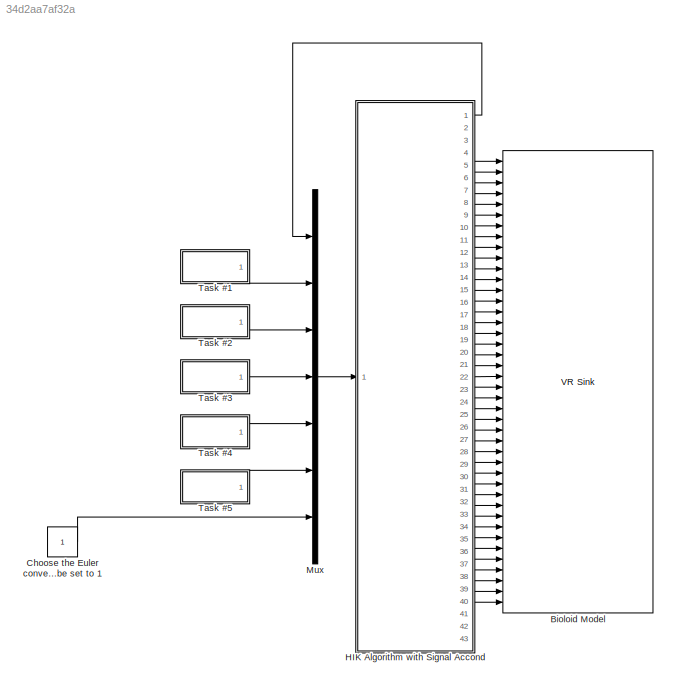
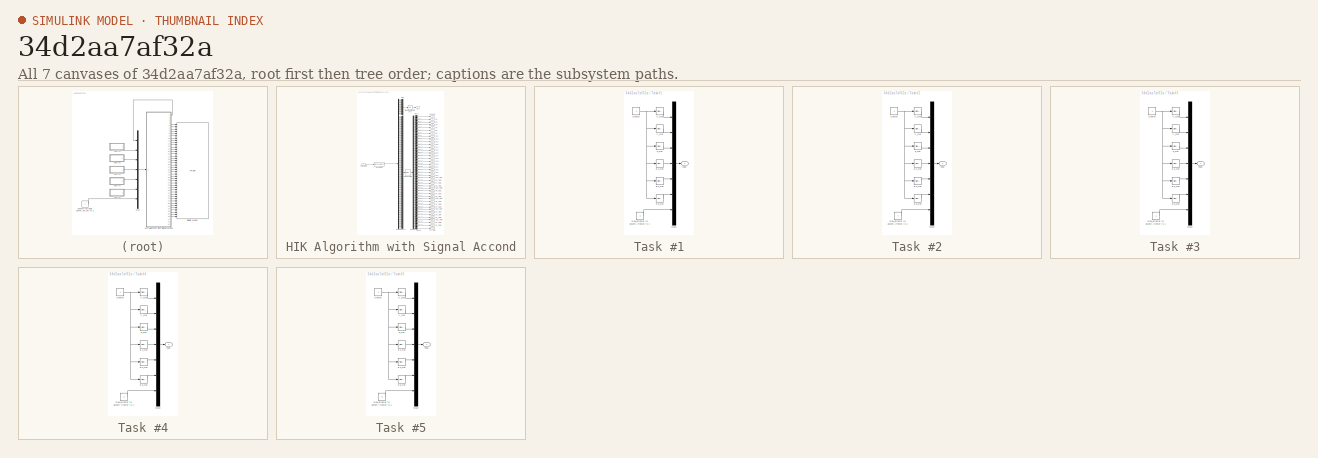
[diagram: thumbnail index - all 7 canvases of the model, root first then tree order]
MODEL slx_34d2aa7af32a
KIND model
BLOCK [Reference] Bioloid Model  REF=vrlib/VR Sink
  AllowVariableSize = off
  AutoView = on
  FieldsWritten = TrunkTraslation.translation.3.1.1.double#TrunkRotX.rotation.4.1.1.double#TrunkRotY.rotation.4.1.1.double#TrunkRotZ.rotation.4.1.1.double#Right_Arm.rotation.4.1.1.double#Right_Humeros1.rotation.4.1.1.double#Right_Hand1.rotation.4.1.1.double#Left_Arm.rotation.4.1.1.double#Left_Humeros1.rotation.4.1.1.double#Left_Hand1.rotation.4.1.1.double#Right_Groin.rotation.4.1.1.double#Right_Hip1.rotation.4.1.1....<+1020ch>
  InstantiateOnLoad = on
  Ports = [42]
  RemoteChange = off
  RemoteView = off
  SampleTime = 0.1
  SourceBlock = vrlib/VR Sink
  SourceType = Virtual Reality Sink
  VideoDimensions = []
  ViewEnable = on
  WorldDescription = Bioloid Model for HIK
  WorldFileName = Bioloid_model_5_obj.wrl
BLOCK [Constant] Choose the Euler convention 1.- XYZ 2.- XZY 3.- XYX 4.- XZX 5.- YXZ 6.- YZX 7.- YXY 8.- YZY 9.- ZXY 10.- ZYX 11.- ZXZ 12.- ZYZ if any other is chosen it will be set to 1
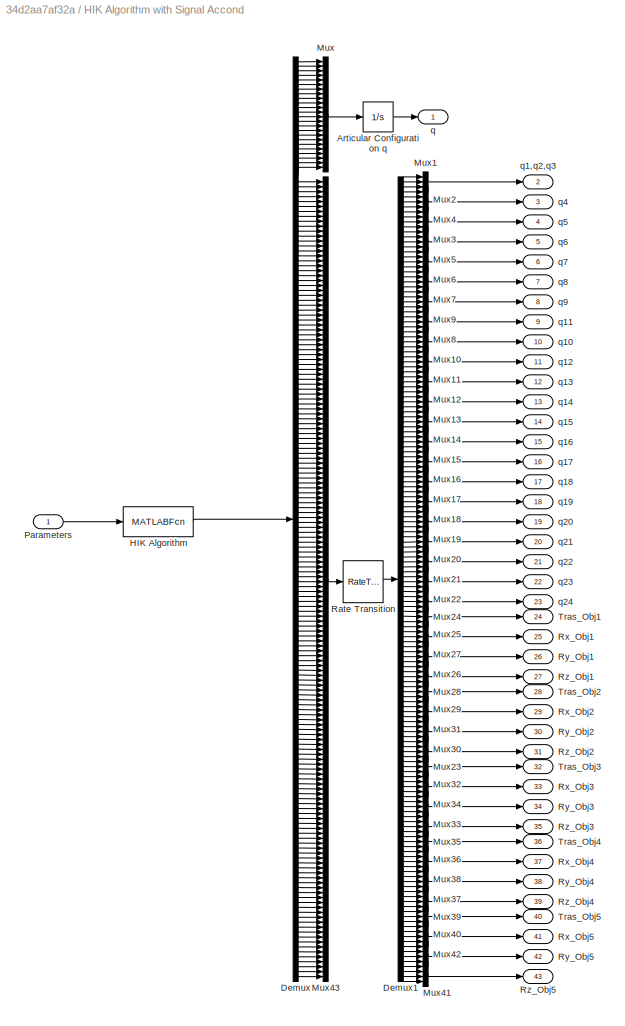
BLOCK [SubSystem] HIK Algorithm with Signal Accond
  FunctionWithSeparateData = off
  MaskHideContents = off
  MinAlgLoopOccurrences = off
  Opaque = off
  Ports = [1, 43]
  PropExecContextOutsideSubsystem = off
  RTWSystemCode = Auto
  RequestExecContextInheritance = off
BLOCK [Integrator] HIK Algorithm with Signal Accond/Articular Configuration q
  Ports = [1, 1]
BLOCK [Demux] HIK Algorithm with Signal Accond/Demux
  DisplayOption = bar
  Outputs = 186
  Ports = [1, 186]
BLOCK [Demux] HIK Algorithm with Signal Accond/Demux1
  DisplayOption = bar
  Outputs = 162
  Ports = [1, 162]
BLOCK [MATLABFcn] HIK Algorithm with Signal Accond/HIK Algorithm
  MATLABFcn = Bioloid_HIK (u(1:24),u(25:30),u(31),u(32:37),u(38),u(39:44),u(45),u(46:51),u(52),u(53:58),u(59),u(60))
  OutputDimensions = 186
  Ports = [1, 1]
  SampleTime = 0.01
BLOCK [Mux] HIK Algorithm with Signal Accond/Mux
  DisplayOption = bar
  Inputs = 24
  Ports = [24, 1]
BLOCK [Mux] HIK Algorithm with Signal Accond/Mux1
  DisplayOption = bar
  Inputs = 3
  Ports = [3, 1]
BLOCK [Mux] HIK Algorithm with Signal Accond/Mux10
  DisplayOption = bar
  Ports = [4, 1]
BLOCK [Mux] HIK Algorithm with Signal Accond/Mux11
  DisplayOption = bar
  Ports = [4, 1]
BLOCK [Mux] HIK Algorithm with Signal Accond/Mux12
  DisplayOption = bar
  Ports = [4, 1]
BLOCK [Mux] HIK Algorithm with Signal Accond/Mux13
  DisplayOption = bar
  Ports = [4, 1]
BLOCK [Mux] HIK Algorithm with Signal Accond/Mux14
  DisplayOption = bar
  Ports = [4, 1]
BLOCK [Mux] HIK Algorithm with Signal Accond/Mux15
  DisplayOption = bar
  Ports = [4, 1]
BLOCK [Mux] HIK Algorithm with Signal Accond/Mux16
  DisplayOption = bar
  Ports = [4, 1]
BLOCK [Mux] HIK Algorithm with Signal Accond/Mux17
  DisplayOption = bar
  Ports = [4, 1]
BLOCK [Mux] HIK Algorithm with Signal Accond/Mux18
  DisplayOption = bar
  Ports = [4, 1]
BLOCK [Mux] HIK Algorithm with Signal Accond/Mux19
  DisplayOption = bar
  Ports = [4, 1]
BLOCK [Mux] HIK Algorithm with Signal Accond/Mux2
  DisplayOption = bar
  Ports = [4, 1]
BLOCK [Mux] HIK Algorithm with Signal Accond/Mux20
  DisplayOption = bar
  Ports = [4, 1]
BLOCK [Mux] HIK Algorithm with Signal Accond/Mux21
  DisplayOption = bar
  Ports = [4, 1]
BLOCK [Mux] HIK Algorithm with Signal Accond/Mux22
  DisplayOption = bar
  Ports = [4, 1]
BLOCK [Mux] HIK Algorithm with Signal Accond/Mux23
  DisplayOption = bar
  Inputs = 3
  Ports = [3, 1]
BLOCK [Mux] HIK Algorithm with Signal Accond/Mux24
  DisplayOption = bar
  Inputs = 3
  Ports = [3, 1]
BLOCK [Mux] HIK Algorithm with Signal Accond/Mux25
  DisplayOption = bar
  Ports = [4, 1]
BLOCK [Mux] HIK Algorithm with Signal Accond/Mux26
  DisplayOption = bar
  Ports = [4, 1]
BLOCK [Mux] HIK Algorithm with Signal Accond/Mux27
  DisplayOption = bar
  Ports = [4, 1]
BLOCK [Mux] HIK Algorithm with Signal Accond/Mux28
  DisplayOption = bar
  Inputs = 3
  Ports = [3, 1]
BLOCK [Mux] HIK Algorithm with Signal Accond/Mux29
  DisplayOption = bar
  Ports = [4, 1]
BLOCK [Mux] HIK Algorithm with Signal Accond/Mux3
  DisplayOption = bar
  Ports = [4, 1]
BLOCK [Mux] HIK Algorithm with Signal Accond/Mux30
  DisplayOption = bar
  Ports = [4, 1]
BLOCK [Mux] HIK Algorithm with Signal Accond/Mux31
  DisplayOption = bar
  Ports = [4, 1]
BLOCK [Mux] HIK Algorithm with Signal Accond/Mux32
  DisplayOption = bar
  Ports = [4, 1]
BLOCK [Mux] HIK Algorithm with Signal Accond/Mux33
  DisplayOption = bar
  Ports = [4, 1]
BLOCK [Mux] HIK Algorithm with Signal Accond/Mux34
  DisplayOption = bar
  Ports = [4, 1]
BLOCK [Mux] HIK Algorithm with Signal Accond/Mux35
  DisplayOption = bar
  Inputs = 3
  Ports = [3, 1]
BLOCK [Mux] HIK Algorithm with Signal Accond/Mux36
  DisplayOption = bar
  Ports = [4, 1]
BLOCK [Mux] HIK Algorithm with Signal Accond/Mux37
  DisplayOption = bar
  Ports = [4, 1]
BLOCK [Mux] HIK Algorithm with Signal Accond/Mux38
  DisplayOption = bar
  Ports = [4, 1]
BLOCK [Mux] HIK Algorithm with Signal Accond/Mux39
  DisplayOption = bar
  Inputs = 3
  Ports = [3, 1]
BLOCK [Mux] HIK Algorithm with Signal Accond/Mux4
  DisplayOption = bar
  Ports = [4, 1]
BLOCK [Mux] HIK Algorithm with Signal Accond/Mux40
  DisplayOption = bar
  Ports = [4, 1]
BLOCK [Mux] HIK Algorithm with Signal Accond/Mux41
  DisplayOption = bar
  Ports = [4, 1]
BLOCK [Mux] HIK Algorithm with Signal Accond/Mux42
  DisplayOption = bar
  Ports = [4, 1]
BLOCK [Mux] HIK Algorithm with Signal Accond/Mux43
  DisplayOption = bar
  Inputs = 162
  Ports = [162, 1]
BLOCK [Mux] HIK Algorithm with Signal Accond/Mux5
  DisplayOption = bar
  Ports = [4, 1]
BLOCK [Mux] HIK Algorithm with Signal Accond/Mux6
  DisplayOption = bar
  Ports = [4, 1]
BLOCK [Mux] HIK Algorithm with Signal Accond/Mux7
  DisplayOption = bar
  Ports = [4, 1]
BLOCK [Mux] HIK Algorithm with Signal Accond/Mux8
  DisplayOption = bar
  Ports = [4, 1]
BLOCK [Mux] HIK Algorithm with Signal Accond/Mux9
  DisplayOption = bar
  Ports = [4, 1]
BLOCK [Inport] HIK Algorithm with Signal Accond/Parameters
  IconDisplay = Port number
BLOCK [RateTransition] HIK Algorithm with Signal Accond/Rate Transition
  OutPortSampleTime = 0.1
BLOCK [Outport] HIK Algorithm with Signal Accond/Rx_Obj1
  IconDisplay = Port number
  Port = 25
BLOCK [Outport] HIK Algorithm with Signal Accond/Rx_Obj2
  IconDisplay = Port number
  Port = 29
BLOCK [Outport] HIK Algorithm with Signal Accond/Rx_Obj3
  IconDisplay = Port number
  Port = 33
BLOCK [Outport] HIK Algorithm with Signal Accond/Rx_Obj4
  IconDisplay = Port number
  Port = 37
BLOCK [Outport] HIK Algorithm with Signal Accond/Rx_Obj5
  IconDisplay = Port number
  Port = 41
BLOCK [Outport] HIK Algorithm with Signal Accond/Ry_Obj1
  IconDisplay = Port number
  Port = 26
BLOCK [Outport] HIK Algorithm with Signal Accond/Ry_Obj2
  IconDisplay = Port number
  Port = 30
BLOCK [Outport] HIK Algorithm with Signal Accond/Ry_Obj3
  IconDisplay = Port number
  Port = 34
BLOCK [Outport] HIK Algorithm with Signal Accond/Ry_Obj4
  IconDisplay = Port number
  Port = 38
BLOCK [Outport] HIK Algorithm with Signal Accond/Ry_Obj5
  IconDisplay = Port number
  Port = 42
BLOCK [Outport] HIK Algorithm with Signal Accond/Rz_Obj1
  IconDisplay = Port number
  Port = 27
BLOCK [Outport] HIK Algorithm with Signal Accond/Rz_Obj2
  IconDisplay = Port number
  Port = 31
BLOCK [Outport] HIK Algorithm with Signal Accond/Rz_Obj3
  IconDisplay = Port number
  Port = 35
BLOCK [Outport] HIK Algorithm with Signal Accond/Rz_Obj4
  IconDisplay = Port number
  Port = 39
BLOCK [Outport] HIK Algorithm with Signal Accond/Rz_Obj5
  IconDisplay = Port number
  Port = 43
BLOCK [Outport] HIK Algorithm with Signal Accond/Tras_Obj1
  IconDisplay = Port number
  Port = 24
BLOCK [Outport] HIK Algorithm with Signal Accond/Tras_Obj2
  IconDisplay = Port number
  Port = 28
BLOCK [Outport] HIK Algorithm with Signal Accond/Tras_Obj3
  IconDisplay = Port number
  Port = 32
BLOCK [Outport] HIK Algorithm with Signal Accond/Tras_Obj4
  IconDisplay = Port number
  Port = 36
BLOCK [Outport] HIK Algorithm with Signal Accond/Tras_Obj5
  IconDisplay = Port number
  Port = 40
BLOCK [Outport] HIK Algorithm with Signal Accond/q
  IconDisplay = Port number
BLOCK [Outport] HIK Algorithm with Signal Accond/q1,q2,q3 
  IconDisplay = Port number
  Port = 2
BLOCK [Outport] HIK Algorithm with Signal Accond/q10
  IconDisplay = Port number
  Port = 10
BLOCK [Outport] HIK Algorithm with Signal Accond/q11
  IconDisplay = Port number
  Port = 9
BLOCK [Outport] HIK Algorithm with Signal Accond/q12
  IconDisplay = Port number
  Port = 11
BLOCK [Outport] HIK Algorithm with Signal Accond/q13
  IconDisplay = Port number
  Port = 12
BLOCK [Outport] HIK Algorithm with Signal Accond/q14
  IconDisplay = Port number
  Port = 13
BLOCK [Outport] HIK Algorithm with Signal Accond/q15
  IconDisplay = Port number
  Port = 14
BLOCK [Outport] HIK Algorithm with Signal Accond/q16
  IconDisplay = Port number
  Port = 15
BLOCK [Outport] HIK Algorithm with Signal Accond/q17
  IconDisplay = Port number
  Port = 16
BLOCK [Outport] HIK Algorithm with Signal Accond/q18
  IconDisplay = Port number
  Port = 17
BLOCK [Outport] HIK Algorithm with Signal Accond/q19
  IconDisplay = Port number
  Port = 18
BLOCK [Outport] HIK Algorithm with Signal Accond/q20
  IconDisplay = Port number
  Port = 19
BLOCK [Outport] HIK Algorithm with Signal Accond/q21
  IconDisplay = Port number
  Port = 20
BLOCK [Outport] HIK Algorithm with Signal Accond/q22
  IconDisplay = Port number
  Port = 21
BLOCK [Outport] HIK Algorithm with Signal Accond/q23
  IconDisplay = Port number
  Port = 22
BLOCK [Outport] HIK Algorithm with Signal Accond/q24
  IconDisplay = Port number
  Port = 23
BLOCK [Outport] HIK Algorithm with Signal Accond/q4
  IconDisplay = Port number
  Port = 3
BLOCK [Outport] HIK Algorithm with Signal Accond/q5
  IconDisplay = Port number
  Port = 4
BLOCK [Outport] HIK Algorithm with Signal Accond/q6
  IconDisplay = Port number
  Port = 5
BLOCK [Outport] HIK Algorithm with Signal Accond/q7
  IconDisplay = Port number
  Port = 6
BLOCK [Outport] HIK Algorithm with Signal Accond/q8
  IconDisplay = Port number
  Port = 7
BLOCK [Outport] HIK Algorithm with Signal Accond/q9
  IconDisplay = Port number
  Port = 8
BLOCK [Mux] Mux
  DisplayOption = bar
  Inputs = 7
  Ports = [7, 1]
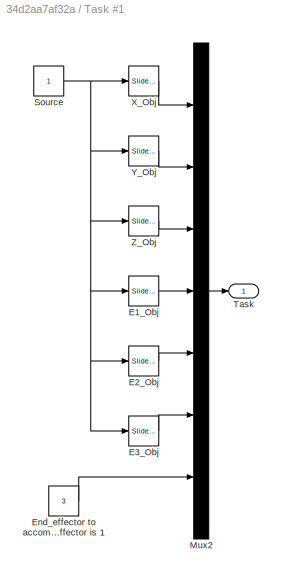
BLOCK [SubSystem] Task #1
  FunctionWithSeparateData = off
  MaskHideContents = off
  MinAlgLoopOccurrences = off
  Opaque = off
  Ports = [0, 1]
  PropExecContextOutsideSubsystem = off
  RTWSystemCode = Auto
  RequestExecContextInheritance = off
BLOCK [Reference] Task #1/E1_Obj  REF=simulink/Math
Operations/Slider
Gain
  Ports = [1, 1]
  SourceBlock = simulink/Math\nOperations/Slider\nGain
  SourceType = Slider Gain
  gain = 0
  high = 6.28
  low = -6.28
BLOCK [Reference] Task #1/E2_Obj  REF=simulink/Math
Operations/Slider
Gain
  Ports = [1, 1]
  SourceBlock = simulink/Math\nOperations/Slider\nGain
  SourceType = Slider Gain
  gain = 0
  high = 6.28
  low = -6.28
BLOCK [Reference] Task #1/E3_Obj  REF=simulink/Math
Operations/Slider
Gain
  Ports = [1, 1]
  SourceBlock = simulink/Math\nOperations/Slider\nGain
  SourceType = Slider Gain
  gain = 0
  high = 6.28
  low = -6.28
BLOCK [Constant] Task #1/End_effector to accomplish the task 1.- Right Hand 2- Left Hand 3.- Right Foot 4.- Left Foot 5.- Trunk if another number is choesen the End effector is 1
  Value = 3
BLOCK [Mux] Task #1/Mux2
  DisplayOption = bar
  Inputs = 7
  Ports = [7, 1]
BLOCK [Constant] Task #1/Source
BLOCK [Outport] Task #1/Task
  IconDisplay = Port number
BLOCK [Reference] Task #1/X_Obj  REF=simulink/Math
Operations/Slider
Gain
  Ports = [1, 1]
  SourceBlock = simulink/Math\nOperations/Slider\nGain
  SourceType = Slider Gain
  gain = 0
  high = 0.5
  low = -0.5
BLOCK [Reference] Task #1/Y_Obj  REF=simulink/Math
Operations/Slider
Gain
  Ports = [1, 1]
  SourceBlock = simulink/Math\nOperations/Slider\nGain
  SourceType = Slider Gain
  gain = -0.0385
  high = 0.5
  low = -0.5
BLOCK [Reference] Task #1/Z_Obj  REF=simulink/Math
Operations/Slider
Gain
  Ports = [1, 1]
  SourceBlock = simulink/Math\nOperations/Slider\nGain
  SourceType = Slider Gain
  gain = 0
  high = 0.5
  low = -0.5
BLOCK [SubSystem] Task #2
  FunctionWithSeparateData = off
  MaskHideContents = off
  MinAlgLoopOccurrences = off
  Opaque = off
  Ports = [0, 1]
  PropExecContextOutsideSubsystem = off
  RTWSystemCode = Auto
  RequestExecContextInheritance = off
BLOCK [Reference] Task #2/E1_Obj  REF=simulink/Math
Operations/Slider
Gain
  Ports = [1, 1]
  SourceBlock = simulink/Math\nOperations/Slider\nGain
  SourceType = Slider Gain
  gain = 0
  high = 6.28
  low = -6.28
BLOCK [Reference] Task #2/E2_Obj  REF=simulink/Math
Operations/Slider
Gain
  Ports = [1, 1]
  SourceBlock = simulink/Math\nOperations/Slider\nGain
  SourceType = Slider Gain
  gain = 0
  high = 6.28
  low = -6.28
BLOCK [Reference] Task #2/E3_Obj  REF=simulink/Math
Operations/Slider
Gain
  Ports = [1, 1]
  SourceBlock = simulink/Math\nOperations/Slider\nGain
  SourceType = Slider Gain
  gain = 0
  high = 6.28
  low = -6.28
BLOCK [Constant] Task #2/End_effector to accomplish the task 1.- Right Hand 2- Left Hand 3.- Right Foot 4.- Left Foot 5.- Trunk if another number is choesen the End effector is 1
  Value = 4
BLOCK [Mux] Task #2/Mux2
  DisplayOption = bar
  Inputs = 7
  Ports = [7, 1]
BLOCK [Constant] Task #2/Source
BLOCK [Outport] Task #2/Task
  IconDisplay = Port number
BLOCK [Reference] Task #2/X_Obj  REF=simulink/Math
Operations/Slider
Gain
  Ports = [1, 1]
  SourceBlock = simulink/Math\nOperations/Slider\nGain
  SourceType = Slider Gain
  gain = 0
  high = 0.5
  low = -0.5
BLOCK [Reference] Task #2/Y_Obj  REF=simulink/Math
Operations/Slider
Gain
  Ports = [1, 1]
  SourceBlock = simulink/Math\nOperations/Slider\nGain
  SourceType = Slider Gain
  gain = 0.0385
  high = 0.5
  low = -0.5
BLOCK [Reference] Task #2/Z_Obj  REF=simulink/Math
Operations/Slider
Gain
  Ports = [1, 1]
  SourceBlock = simulink/Math\nOperations/Slider\nGain
  SourceType = Slider Gain
  gain = 0
  high = 0.5
  low = -0.5
BLOCK [SubSystem] Task #3
  FunctionWithSeparateData = off
  MaskHideContents = off
  MinAlgLoopOccurrences = off
  Opaque = off
  Ports = [0, 1]
  PropExecContextOutsideSubsystem = off
  RTWSystemCode = Auto
  RequestExecContextInheritance = off
BLOCK [Reference] Task #3/E1_Obj  REF=simulink/Math
Operations/Slider
Gain
  Ports = [1, 1]
  SourceBlock = simulink/Math\nOperations/Slider\nGain
  SourceType = Slider Gain
  gain = 0
  high = 6.28
  low = -6.28
BLOCK [Reference] Task #3/E2_Obj  REF=simulink/Math
Operations/Slider
Gain
  Ports = [1, 1]
  SourceBlock = simulink/Math\nOperations/Slider\nGain
  SourceType = Slider Gain
  gain = -1.5708
  high = 6.28
  low = -6.28
BLOCK [Reference] Task #3/E3_Obj  REF=simulink/Math
Operations/Slider
Gain
  Ports = [1, 1]
  SourceBlock = simulink/Math\nOperations/Slider\nGain
  SourceType = Slider Gain
  gain = 0
  high = 6.28
  low = -6.28
BLOCK [Constant] Task #3/End_effector to accomplish the task 1.- Right Hand 2- Left Hand 3.- Right Foot 4.- Left Foot 5.- Trunk if another number is choesen the End effector is 1
BLOCK [Mux] Task #3/Mux2
  DisplayOption = bar
  Inputs = 7
  Ports = [7, 1]
BLOCK [Constant] Task #3/Source
BLOCK [Outport] Task #3/Task
  IconDisplay = Port number
BLOCK [Reference] Task #3/X_Obj  REF=simulink/Math
Operations/Slider
Gain
  Ports = [1, 1]
  SourceBlock = simulink/Math\nOperations/Slider\nGain
  SourceType = Slider Gain
  gain = 0.1
  high = 0.5
  low = -0.5
BLOCK [Reference] Task #3/Y_Obj  REF=simulink/Math
Operations/Slider
Gain
  Ports = [1, 1]
  SourceBlock = simulink/Math\nOperations/Slider\nGain
  SourceType = Slider Gain
  gain = -0.125
  high = 0.5
  low = -0.5
BLOCK [Reference] Task #3/Z_Obj  REF=simulink/Math
Operations/Slider
Gain
  Ports = [1, 1]
  SourceBlock = simulink/Math\nOperations/Slider\nGain
  SourceType = Slider Gain
  gain = 0.3025
  high = 0.5
  low = -0.5
BLOCK [SubSystem] Task #4
  FunctionWithSeparateData = off
  MaskHideContents = off
  MinAlgLoopOccurrences = off
  Opaque = off
  Ports = [0, 1]
  PropExecContextOutsideSubsystem = off
  RTWSystemCode = Auto
  RequestExecContextInheritance = off
BLOCK [Reference] Task #4/E1_Obj  REF=simulink/Math
Operations/Slider
Gain
  Ports = [1, 1]
  SourceBlock = simulink/Math\nOperations/Slider\nGain
  SourceType = Slider Gain
  gain = 0
  high = 6.28
  low = -6.28
BLOCK [Reference] Task #4/E2_Obj  REF=simulink/Math
Operations/Slider
Gain
  Ports = [1, 1]
  SourceBlock = simulink/Math\nOperations/Slider\nGain
  SourceType = Slider Gain
  gain = 1.5708
  high = 6.28
  low = -6.28
BLOCK [Reference] Task #4/E3_Obj  REF=simulink/Math
Operations/Slider
Gain
  Ports = [1, 1]
  SourceBlock = simulink/Math\nOperations/Slider\nGain
  SourceType = Slider Gain
  gain = 0
  high = 6.28
  low = -6.28
BLOCK [Constant] Task #4/End_effector to accomplish the task 1.- Right Hand 2- Left Hand 3.- Right Foot 4.- Left Foot 5.- Trunk if another number is choesen the End effector is 1
  Value = 2
BLOCK [Mux] Task #4/Mux2
  DisplayOption = bar
  Inputs = 7
  Ports = [7, 1]
BLOCK [Constant] Task #4/Source
BLOCK [Outport] Task #4/Task
  IconDisplay = Port number
BLOCK [Reference] Task #4/X_Obj  REF=simulink/Math
Operations/Slider
Gain
  Ports = [1, 1]
  SourceBlock = simulink/Math\nOperations/Slider\nGain
  SourceType = Slider Gain
  gain = 0
  high = 0.5
  low = -0.5
BLOCK [Reference] Task #4/Y_Obj  REF=simulink/Math
Operations/Slider
Gain
  Ports = [1, 1]
  SourceBlock = simulink/Math\nOperations/Slider\nGain
  SourceType = Slider Gain
  gain = 0.185
  high = 0.5
  low = -0.5
BLOCK [Reference] Task #4/Z_Obj  REF=simulink/Math
Operations/Slider
Gain
  Ports = [1, 1]
  SourceBlock = simulink/Math\nOperations/Slider\nGain
  SourceType = Slider Gain
  gain = 0.32569
  high = 0.5
  low = -0.5
BLOCK [SubSystem] Task #5
  FunctionWithSeparateData = off
  MaskHideContents = off
  MinAlgLoopOccurrences = off
  Opaque = off
  Ports = [0, 1]
  PropExecContextOutsideSubsystem = off
  RTWSystemCode = Auto
  RequestExecContextInheritance = off
BLOCK [Reference] Task #5/E1_Obj  REF=simulink/Math
Operations/Slider
Gain
  Ports = [1, 1]
  SourceBlock = simulink/Math\nOperations/Slider\nGain
  SourceType = Slider Gain
  gain = 0
  high = 6.28
  low = -6.28
BLOCK [Reference] Task #5/E2_Obj  REF=simulink/Math
Operations/Slider
Gain
  Ports = [1, 1]
  SourceBlock = simulink/Math\nOperations/Slider\nGain
  SourceType = Slider Gain
  gain = 0
  high = 6.28
  low = -6.28
BLOCK [Reference] Task #5/E3_Obj  REF=simulink/Math
Operations/Slider
Gain
  Ports = [1, 1]
  SourceBlock = simulink/Math\nOperations/Slider\nGain
  SourceType = Slider Gain
  gain = 1.256
  high = 6.28
  low = -6.28
BLOCK [Constant] Task #5/End_effector to accomplish the task 1.- Right Hand 2- Left Hand 3.- Right Foot 4.- Left Foot 5.- Trunk if another number is choesen the End effector is 1
  Value = 5
BLOCK [Mux] Task #5/Mux2
  DisplayOption = bar
  Inputs = 7
  Ports = [7, 1]
BLOCK [Constant] Task #5/Source
BLOCK [Outport] Task #5/Task
  IconDisplay = Port number
BLOCK [Reference] Task #5/X_Obj  REF=simulink/Math
Operations/Slider
Gain
  Ports = [1, 1]
  SourceBlock = simulink/Math\nOperations/Slider\nGain
  SourceType = Slider Gain
  gain = 0
  high = 0.5
  low = -0.5
BLOCK [Reference] Task #5/Y_Obj  REF=simulink/Math
Operations/Slider
Gain
  Ports = [1, 1]
  SourceBlock = simulink/Math\nOperations/Slider\nGain
  SourceType = Slider Gain
  gain = 0
  high = 0.5
  low = -0.5
BLOCK [Reference] Task #5/Z_Obj  REF=simulink/Math
Operations/Slider
Gain
  Ports = [1, 1]
  SourceBlock = simulink/Math\nOperations/Slider\nGain
  SourceType = Slider Gain
  gain = 0.2825
  high = 0.5
  low = -0.5
LINE Choose the Euler convention 1.- XYZ 2.- XZY 3.- XYX 4.- XZX 5.- YXZ 6.- YZX 7.- YXY 8.- YZY 9.- ZXY 10.- ZYX 11.- ZXZ 12.- ZYZ if any other is chosen it will be set to 1:1 -> Mux:7
LINE HIK Algorithm with Signal Accond/Articular Configuration q:1 -> HIK Algorithm with Signal Accond/q:1
LINE HIK Algorithm with Signal Accond/Demux1:1 -> HIK Algorithm with Signal Accond/Mux1:1
LINE HIK Algorithm with Signal Accond/Demux1:10 -> HIK Algorithm with Signal Accond/Mux4:3
LINE HIK Algorithm with Signal Accond/Demux1:100 -> HIK Algorithm with Signal Accond/Mux26:2
LINE HIK Algorithm with Signal Accond/Demux1:101 -> HIK Algorithm with Signal Accond/Mux26:3
LINE HIK Algorithm with Signal Accond/Demux1:102 -> HIK Algorithm with Signal Accond/Mux26:4
LINE HIK Algorithm with Signal Accond/Demux1:103 -> HIK Algorithm with Signal Accond/Mux28:1
LINE HIK Algorithm with Signal Accond/Demux1:104 -> HIK Algorithm with Signal Accond/Mux28:2
LINE HIK Algorithm with Signal Accond/Demux1:105 -> HIK Algorithm with Signal Accond/Mux28:3
LINE HIK Algorithm with Signal Accond/Demux1:106 -> HIK Algorithm with Signal Accond/Mux29:1
LINE HIK Algorithm with Signal Accond/Demux1:107 -> HIK Algorithm with Signal Accond/Mux29:2
LINE HIK Algorithm with Signal Accond/Demux1:108 -> HIK Algorithm with Signal Accond/Mux29:3
LINE HIK Algorithm with Signal Accond/Demux1:109 -> HIK Algorithm with Signal Accond/Mux29:4
LINE HIK Algorithm with Signal Accond/Demux1:11 -> HIK Algorithm with Signal Accond/Mux4:4
LINE HIK Algorithm with Signal Accond/Demux1:110 -> HIK Algorithm with Signal Accond/Mux31:1
LINE HIK Algorithm with Signal Accond/Demux1:111 -> HIK Algorithm with Signal Accond/Mux31:2
LINE HIK Algorithm with Signal Accond/Demux1:112 -> HIK Algorithm with Signal Accond/Mux31:3
LINE HIK Algorithm with Signal Accond/Demux1:113 -> HIK Algorithm with Signal Accond/Mux31:4
LINE HIK Algorithm with Signal Accond/Demux1:114 -> HIK Algorithm with Signal Accond/Mux30:1
LINE HIK Algorithm with Signal Accond/Demux1:115 -> HIK Algorithm with Signal Accond/Mux30:2
LINE HIK Algorithm with Signal Accond/Demux1:116 -> HIK Algorithm with Signal Accond/Mux30:3
LINE HIK Algorithm with Signal Accond/Demux1:117 -> HIK Algorithm with Signal Accond/Mux30:4
LINE HIK Algorithm with Signal Accond/Demux1:118 -> HIK Algorithm with Signal Accond/Mux23:1
LINE HIK Algorithm with Signal Accond/Demux1:119 -> HIK Algorithm with Signal Accond/Mux23:2
LINE HIK Algorithm with Signal Accond/Demux1:12 -> HIK Algorithm with Signal Accond/Mux3:1
LINE HIK Algorithm with Signal Accond/Demux1:120 -> HIK Algorithm with Signal Accond/Mux23:3
LINE HIK Algorithm with Signal Accond/Demux1:121 -> HIK Algorithm with Signal Accond/Mux32:1
LINE HIK Algorithm with Signal Accond/Demux1:122 -> HIK Algorithm with Signal Accond/Mux32:2
LINE HIK Algorithm with Signal Accond/Demux1:123 -> HIK Algorithm with Signal Accond/Mux32:3
LINE HIK Algorithm with Signal Accond/Demux1:124 -> HIK Algorithm with Signal Accond/Mux32:4
LINE HIK Algorithm with Signal Accond/Demux1:125 -> HIK Algorithm with Signal Accond/Mux34:1
LINE HIK Algorithm with Signal Accond/Demux1:126 -> HIK Algorithm with Signal Accond/Mux34:2
LINE HIK Algorithm with Signal Accond/Demux1:127 -> HIK Algorithm with Signal Accond/Mux34:3
LINE HIK Algorithm with Signal Accond/Demux1:128 -> HIK Algorithm with Signal Accond/Mux34:4
LINE HIK Algorithm with Signal Accond/Demux1:129 -> HIK Algorithm with Signal Accond/Mux33:1
LINE HIK Algorithm with Signal Accond/Demux1:13 -> HIK Algorithm with Signal Accond/Mux3:2
LINE HIK Algorithm with Signal Accond/Demux1:130 -> HIK Algorithm with Signal Accond/Mux33:2
LINE HIK Algorithm with Signal Accond/Demux1:131 -> HIK Algorithm with Signal Accond/Mux33:3
LINE HIK Algorithm with Signal Accond/Demux1:132 -> HIK Algorithm with Signal Accond/Mux33:4
LINE HIK Algorithm with Signal Accond/Demux1:133 -> HIK Algorithm with Signal Accond/Mux35:1
LINE HIK Algorithm with Signal Accond/Demux1:134 -> HIK Algorithm with Signal Accond/Mux35:2
LINE HIK Algorithm with Signal Accond/Demux1:135 -> HIK Algorithm with Signal Accond/Mux35:3
LINE HIK Algorithm with Signal Accond/Demux1:136 -> HIK Algorithm with Signal Accond/Mux36:1
LINE HIK Algorithm with Signal Accond/Demux1:137 -> HIK Algorithm with Signal Accond/Mux36:2
LINE HIK Algorithm with Signal Accond/Demux1:138 -> HIK Algorithm with Signal Accond/Mux36:3
LINE HIK Algorithm with Signal Accond/Demux1:139 -> HIK Algorithm with Signal Accond/Mux36:4
LINE HIK Algorithm with Signal Accond/Demux1:14 -> HIK Algorithm with Signal Accond/Mux3:3
LINE HIK Algorithm with Signal Accond/Demux1:140 -> HIK Algorithm with Signal Accond/Mux38:1
LINE HIK Algorithm with Signal Accond/Demux1:141 -> HIK Algorithm with Signal Accond/Mux38:2
LINE HIK Algorithm with Signal Accond/Demux1:142 -> HIK Algorithm with Signal Accond/Mux38:3
LINE HIK Algorithm with Signal Accond/Demux1:143 -> HIK Algorithm with Signal Accond/Mux38:4
LINE HIK Algorithm with Signal Accond/Demux1:144 -> HIK Algorithm with Signal Accond/Mux37:1
LINE HIK Algorithm with Signal Accond/Demux1:145 -> HIK Algorithm with Signal Accond/Mux37:2
LINE HIK Algorithm with Signal Accond/Demux1:146 -> HIK Algorithm with Signal Accond/Mux37:3
LINE HIK Algorithm with Signal Accond/Demux1:147 -> HIK Algorithm with Signal Accond/Mux37:4
LINE HIK Algorithm with Signal Accond/Demux1:148 -> HIK Algorithm with Signal Accond/Mux39:1
LINE HIK Algorithm with Signal Accond/Demux1:149 -> HIK Algorithm with Signal Accond/Mux39:2
LINE HIK Algorithm with Signal Accond/Demux1:15 -> HIK Algorithm with Signal Accond/Mux3:4
LINE HIK Algorithm with Signal Accond/Demux1:150 -> HIK Algorithm with Signal Accond/Mux39:3
LINE HIK Algorithm with Signal Accond/Demux1:151 -> HIK Algorithm with Signal Accond/Mux40:1
LINE HIK Algorithm with Signal Accond/Demux1:152 -> HIK Algorithm with Signal Accond/Mux40:2
LINE HIK Algorithm with Signal Accond/Demux1:153 -> HIK Algorithm with Signal Accond/Mux40:3
LINE HIK Algorithm with Signal Accond/Demux1:154 -> HIK Algorithm with Signal Accond/Mux40:4
LINE HIK Algorithm with Signal Accond/Demux1:155 -> HIK Algorithm with Signal Accond/Mux42:1
LINE HIK Algorithm with Signal Accond/Demux1:156 -> HIK Algorithm with Signal Accond/Mux42:2
LINE HIK Algorithm with Signal Accond/Demux1:157 -> HIK Algorithm with Signal Accond/Mux42:3
LINE HIK Algorithm with Signal Accond/Demux1:158 -> HIK Algorithm with Signal Accond/Mux42:4
LINE HIK Algorithm with Signal Accond/Demux1:159 -> HIK Algorithm with Signal Accond/Mux41:1
LINE HIK Algorithm with Signal Accond/Demux1:16 -> HIK Algorithm with Signal Accond/Mux5:1
LINE HIK Algorithm with Signal Accond/Demux1:160 -> HIK Algorithm with Signal Accond/Mux41:2
LINE HIK Algorithm with Signal Accond/Demux1:161 -> HIK Algorithm with Signal Accond/Mux41:3
LINE HIK Algorithm with Signal Accond/Demux1:162 -> HIK Algorithm with Signal Accond/Mux41:4
LINE HIK Algorithm with Signal Accond/Demux1:17 -> HIK Algorithm with Signal Accond/Mux5:2
LINE HIK Algorithm with Signal Accond/Demux1:18 -> HIK Algorithm with Signal Accond/Mux5:3
LINE HIK Algorithm with Signal Accond/Demux1:19 -> HIK Algorithm with Signal Accond/Mux5:4
LINE HIK Algorithm with Signal Accond/Demux1:2 -> HIK Algorithm with Signal Accond/Mux1:2
LINE HIK Algorithm with Signal Accond/Demux1:20 -> HIK Algorithm with Signal Accond/Mux6:1
LINE HIK Algorithm with Signal Accond/Demux1:21 -> HIK Algorithm with Signal Accond/Mux6:2
LINE HIK Algorithm with Signal Accond/Demux1:22 -> HIK Algorithm with Signal Accond/Mux6:3
LINE HIK Algorithm with Signal Accond/Demux1:23 -> HIK Algorithm with Signal Accond/Mux6:4
LINE HIK Algorithm with Signal Accond/Demux1:24 -> HIK Algorithm with Signal Accond/Mux7:1
LINE HIK Algorithm with Signal Accond/Demux1:25 -> HIK Algorithm with Signal Accond/Mux7:2
LINE HIK Algorithm with Signal Accond/Demux1:26 -> HIK Algorithm with Signal Accond/Mux7:3
LINE HIK Algorithm with Signal Accond/Demux1:27 -> HIK Algorithm with Signal Accond/Mux7:4
LINE HIK Algorithm with Signal Accond/Demux1:28 -> HIK Algorithm with Signal Accond/Mux9:1
LINE HIK Algorithm with Signal Accond/Demux1:29 -> HIK Algorithm with Signal Accond/Mux9:2
LINE HIK Algorithm with Signal Accond/Demux1:3 -> HIK Algorithm with Signal Accond/Mux1:3
LINE HIK Algorithm with Signal Accond/Demux1:30 -> HIK Algorithm with Signal Accond/Mux9:3
LINE HIK Algorithm with Signal Accond/Demux1:31 -> HIK Algorithm with Signal Accond/Mux9:4
LINE HIK Algorithm with Signal Accond/Demux1:32 -> HIK Algorithm with Signal Accond/Mux8:1
LINE HIK Algorithm with Signal Accond/Demux1:33 -> HIK Algorithm with Signal Accond/Mux8:2
LINE HIK Algorithm with Signal Accond/Demux1:34 -> HIK Algorithm with Signal Accond/Mux8:3
LINE HIK Algorithm with Signal Accond/Demux1:35 -> HIK Algorithm with Signal Accond/Mux8:4
LINE HIK Algorithm with Signal Accond/Demux1:36 -> HIK Algorithm with Signal Accond/Mux10:1
LINE HIK Algorithm with Signal Accond/Demux1:37 -> HIK Algorithm with Signal Accond/Mux10:2
LINE HIK Algorithm with Signal Accond/Demux1:38 -> HIK Algorithm with Signal Accond/Mux10:3
LINE HIK Algorithm with Signal Accond/Demux1:39 -> HIK Algorithm with Signal Accond/Mux10:4
LINE HIK Algorithm with Signal Accond/Demux1:4 -> HIK Algorithm with Signal Accond/Mux2:1
LINE HIK Algorithm with Signal Accond/Demux1:40 -> HIK Algorithm with Signal Accond/Mux11:1
LINE HIK Algorithm with Signal Accond/Demux1:41 -> HIK Algorithm with Signal Accond/Mux11:2
LINE HIK Algorithm with Signal Accond/Demux1:42 -> HIK Algorithm with Signal Accond/Mux11:3
LINE HIK Algorithm with Signal Accond/Demux1:43 -> HIK Algorithm with Signal Accond/Mux11:4
LINE HIK Algorithm with Signal Accond/Demux1:44 -> HIK Algorithm with Signal Accond/Mux12:1
LINE HIK Algorithm with Signal Accond/Demux1:45 -> HIK Algorithm with Signal Accond/Mux12:2
LINE HIK Algorithm with Signal Accond/Demux1:46 -> HIK Algorithm with Signal Accond/Mux12:3
LINE HIK Algorithm with Signal Accond/Demux1:47 -> HIK Algorithm with Signal Accond/Mux12:4
LINE HIK Algorithm with Signal Accond/Demux1:48 -> HIK Algorithm with Signal Accond/Mux13:1
LINE HIK Algorithm with Signal Accond/Demux1:49 -> HIK Algorithm with Signal Accond/Mux13:2
LINE HIK Algorithm with Signal Accond/Demux1:5 -> HIK Algorithm with Signal Accond/Mux2:2
LINE HIK Algorithm with Signal Accond/Demux1:50 -> HIK Algorithm with Signal Accond/Mux13:3
LINE HIK Algorithm with Signal Accond/Demux1:51 -> HIK Algorithm with Signal Accond/Mux13:4
LINE HIK Algorithm with Signal Accond/Demux1:52 -> HIK Algorithm with Signal Accond/Mux14:1
LINE HIK Algorithm with Signal Accond/Demux1:53 -> HIK Algorithm with Signal Accond/Mux14:2
LINE HIK Algorithm with Signal Accond/Demux1:54 -> HIK Algorithm with Signal Accond/Mux14:3
LINE HIK Algorithm with Signal Accond/Demux1:55 -> HIK Algorithm with Signal Accond/Mux14:4
LINE HIK Algorithm with Signal Accond/Demux1:56 -> HIK Algorithm with Signal Accond/Mux15:1
LINE HIK Algorithm with Signal Accond/Demux1:57 -> HIK Algorithm with Signal Accond/Mux15:2
LINE HIK Algorithm with Signal Accond/Demux1:58 -> HIK Algorithm with Signal Accond/Mux15:3
LINE HIK Algorithm with Signal Accond/Demux1:59 -> HIK Algorithm with Signal Accond/Mux15:4
LINE HIK Algorithm with Signal Accond/Demux1:6 -> HIK Algorithm with Signal Accond/Mux2:3
LINE HIK Algorithm with Signal Accond/Demux1:60 -> HIK Algorithm with Signal Accond/Mux16:1
LINE HIK Algorithm with Signal Accond/Demux1:61 -> HIK Algorithm with Signal Accond/Mux16:2
LINE HIK Algorithm with Signal Accond/Demux1:62 -> HIK Algorithm with Signal Accond/Mux16:3
LINE HIK Algorithm with Signal Accond/Demux1:63 -> HIK Algorithm with Signal Accond/Mux16:4
LINE HIK Algorithm with Signal Accond/Demux1:64 -> HIK Algorithm with Signal Accond/Mux17:1
LINE HIK Algorithm with Signal Accond/Demux1:65 -> HIK Algorithm with Signal Accond/Mux17:2
LINE HIK Algorithm with Signal Accond/Demux1:66 -> HIK Algorithm with Signal Accond/Mux17:3
LINE HIK Algorithm with Signal Accond/Demux1:67 -> HIK Algorithm with Signal Accond/Mux17:4
LINE HIK Algorithm with Signal Accond/Demux1:68 -> HIK Algorithm with Signal Accond/Mux18:1
LINE HIK Algorithm with Signal Accond/Demux1:69 -> HIK Algorithm with Signal Accond/Mux18:2
LINE HIK Algorithm with Signal Accond/Demux1:7 -> HIK Algorithm with Signal Accond/Mux2:4
LINE HIK Algorithm with Signal Accond/Demux1:70 -> HIK Algorithm with Signal Accond/Mux18:3
LINE HIK Algorithm with Signal Accond/Demux1:71 -> HIK Algorithm with Signal Accond/Mux18:4
LINE HIK Algorithm with Signal Accond/Demux1:72 -> HIK Algorithm with Signal Accond/Mux19:1
LINE HIK Algorithm with Signal Accond/Demux1:73 -> HIK Algorithm with Signal Accond/Mux19:2
LINE HIK Algorithm with Signal Accond/Demux1:74 -> HIK Algorithm with Signal Accond/Mux19:3
LINE HIK Algorithm with Signal Accond/Demux1:75 -> HIK Algorithm with Signal Accond/Mux19:4
LINE HIK Algorithm with Signal Accond/Demux1:76 -> HIK Algorithm with Signal Accond/Mux20:1
LINE HIK Algorithm with Signal Accond/Demux1:77 -> HIK Algorithm with Signal Accond/Mux20:2
LINE HIK Algorithm with Signal Accond/Demux1:78 -> HIK Algorithm with Signal Accond/Mux20:3
LINE HIK Algorithm with Signal Accond/Demux1:79 -> HIK Algorithm with Signal Accond/Mux20:4
LINE HIK Algorithm with Signal Accond/Demux1:8 -> HIK Algorithm with Signal Accond/Mux4:1
LINE HIK Algorithm with Signal Accond/Demux1:80 -> HIK Algorithm with Signal Accond/Mux21:1
LINE HIK Algorithm with Signal Accond/Demux1:81 -> HIK Algorithm with Signal Accond/Mux21:2
LINE HIK Algorithm with Signal Accond/Demux1:82 -> HIK Algorithm with Signal Accond/Mux21:3
LINE HIK Algorithm with Signal Accond/Demux1:83 -> HIK Algorithm with Signal Accond/Mux21:4
LINE HIK Algorithm with Signal Accond/Demux1:84 -> HIK Algorithm with Signal Accond/Mux22:1
LINE HIK Algorithm with Signal Accond/Demux1:85 -> HIK Algorithm with Signal Accond/Mux22:2
LINE HIK Algorithm with Signal Accond/Demux1:86 -> HIK Algorithm with Signal Accond/Mux22:3
LINE HIK Algorithm with Signal Accond/Demux1:87 -> HIK Algorithm with Signal Accond/Mux22:4
LINE HIK Algorithm with Signal Accond/Demux1:88 -> HIK Algorithm with Signal Accond/Mux24:1
LINE HIK Algorithm with Signal Accond/Demux1:89 -> HIK Algorithm with Signal Accond/Mux24:2
LINE HIK Algorithm with Signal Accond/Demux1:9 -> HIK Algorithm with Signal Accond/Mux4:2
LINE HIK Algorithm with Signal Accond/Demux1:90 -> HIK Algorithm with Signal Accond/Mux24:3
LINE HIK Algorithm with Signal Accond/Demux1:91 -> HIK Algorithm with Signal Accond/Mux25:1
LINE HIK Algorithm with Signal Accond/Demux1:92 -> HIK Algorithm with Signal Accond/Mux25:2
LINE HIK Algorithm with Signal Accond/Demux1:93 -> HIK Algorithm with Signal Accond/Mux25:3
LINE HIK Algorithm with Signal Accond/Demux1:94 -> HIK Algorithm with Signal Accond/Mux25:4
LINE HIK Algorithm with Signal Accond/Demux1:95 -> HIK Algorithm with Signal Accond/Mux27:1
LINE HIK Algorithm with Signal Accond/Demux1:96 -> HIK Algorithm with Signal Accond/Mux27:2
LINE HIK Algorithm with Signal Accond/Demux1:97 -> HIK Algorithm with Signal Accond/Mux27:3
LINE HIK Algorithm with Signal Accond/Demux1:98 -> HIK Algorithm with Signal Accond/Mux27:4
LINE HIK Algorithm with Signal Accond/Demux1:99 -> HIK Algorithm with Signal Accond/Mux26:1
LINE HIK Algorithm with Signal Accond/Demux:1 -> HIK Algorithm with Signal Accond/Mux:1
LINE HIK Algorithm with Signal Accond/Demux:10 -> HIK Algorithm with Signal Accond/Mux:10
LINE HIK Algorithm with Signal Accond/Demux:100 -> HIK Algorithm with Signal Accond/Mux43:76
LINE HIK Algorithm with Signal Accond/Demux:101 -> HIK Algorithm with Signal Accond/Mux43:77
LINE HIK Algorithm with Signal Accond/Demux:102 -> HIK Algorithm with Signal Accond/Mux43:78
LINE HIK Algorithm with Signal Accond/Demux:103 -> HIK Algorithm with Signal Accond/Mux43:79
LINE HIK Algorithm with Signal Accond/Demux:104 -> HIK Algorithm with Signal Accond/Mux43:80
LINE HIK Algorithm with Signal Accond/Demux:105 -> HIK Algorithm with Signal Accond/Mux43:81
LINE HIK Algorithm with Signal Accond/Demux:106 -> HIK Algorithm with Signal Accond/Mux43:82
LINE HIK Algorithm with Signal Accond/Demux:107 -> HIK Algorithm with Signal Accond/Mux43:83
LINE HIK Algorithm with Signal Accond/Demux:108 -> HIK Algorithm with Signal Accond/Mux43:84
LINE HIK Algorithm with Signal Accond/Demux:109 -> HIK Algorithm with Signal Accond/Mux43:85
LINE HIK Algorithm with Signal Accond/Demux:11 -> HIK Algorithm with Signal Accond/Mux:11
LINE HIK Algorithm with Signal Accond/Demux:110 -> HIK Algorithm with Signal Accond/Mux43:86
LINE HIK Algorithm with Signal Accond/Demux:111 -> HIK Algorithm with Signal Accond/Mux43:87
LINE HIK Algorithm with Signal Accond/Demux:112 -> HIK Algorithm with Signal Accond/Mux43:88
LINE HIK Algorithm with Signal Accond/Demux:113 -> HIK Algorithm with Signal Accond/Mux43:89
LINE HIK Algorithm with Signal Accond/Demux:114 -> HIK Algorithm with Signal Accond/Mux43:90
LINE HIK Algorithm with Signal Accond/Demux:115 -> HIK Algorithm with Signal Accond/Mux43:91
LINE HIK Algorithm with Signal Accond/Demux:116 -> HIK Algorithm with Signal Accond/Mux43:92
LINE HIK Algorithm with Signal Accond/Demux:117 -> HIK Algorithm with Signal Accond/Mux43:93
LINE HIK Algorithm with Signal Accond/Demux:118 -> HIK Algorithm with Signal Accond/Mux43:94
LINE HIK Algorithm with Signal Accond/Demux:119 -> HIK Algorithm with Signal Accond/Mux43:95
LINE HIK Algorithm with Signal Accond/Demux:12 -> HIK Algorithm with Signal Accond/Mux:12
LINE HIK Algorithm with Signal Accond/Demux:120 -> HIK Algorithm with Signal Accond/Mux43:96
LINE HIK Algorithm with Signal Accond/Demux:121 -> HIK Algorithm with Signal Accond/Mux43:97
LINE HIK Algorithm with Signal Accond/Demux:122 -> HIK Algorithm with Signal Accond/Mux43:98
LINE HIK Algorithm with Signal Accond/Demux:123 -> HIK Algorithm with Signal Accond/Mux43:99
LINE HIK Algorithm with Signal Accond/Demux:124 -> HIK Algorithm with Signal Accond/Mux43:100
LINE HIK Algorithm with Signal Accond/Demux:125 -> HIK Algorithm with Signal Accond/Mux43:101
LINE HIK Algorithm with Signal Accond/Demux:126 -> HIK Algorithm with Signal Accond/Mux43:102
LINE HIK Algorithm with Signal Accond/Demux:127 -> HIK Algorithm with Signal Accond/Mux43:103
LINE HIK Algorithm with Signal Accond/Demux:128 -> HIK Algorithm with Signal Accond/Mux43:104
LINE HIK Algorithm with Signal Accond/Demux:129 -> HIK Algorithm with Signal Accond/Mux43:105
LINE HIK Algorithm with Signal Accond/Demux:13 -> HIK Algorithm with Signal Accond/Mux:13
LINE HIK Algorithm with Signal Accond/Demux:130 -> HIK Algorithm with Signal Accond/Mux43:106
LINE HIK Algorithm with Signal Accond/Demux:131 -> HIK Algorithm with Signal Accond/Mux43:107
LINE HIK Algorithm with Signal Accond/Demux:132 -> HIK Algorithm with Signal Accond/Mux43:108
LINE HIK Algorithm with Signal Accond/Demux:133 -> HIK Algorithm with Signal Accond/Mux43:109
LINE HIK Algorithm with Signal Accond/Demux:134 -> HIK Algorithm with Signal Accond/Mux43:110
LINE HIK Algorithm with Signal Accond/Demux:135 -> HIK Algorithm with Signal Accond/Mux43:111
LINE HIK Algorithm with Signal Accond/Demux:136 -> HIK Algorithm with Signal Accond/Mux43:112
LINE HIK Algorithm with Signal Accond/Demux:137 -> HIK Algorithm with Signal Accond/Mux43:113
LINE HIK Algorithm with Signal Accond/Demux:138 -> HIK Algorithm with Signal Accond/Mux43:114
LINE HIK Algorithm with Signal Accond/Demux:139 -> HIK Algorithm with Signal Accond/Mux43:115
LINE HIK Algorithm with Signal Accond/Demux:14 -> HIK Algorithm with Signal Accond/Mux:14
LINE HIK Algorithm with Signal Accond/Demux:140 -> HIK Algorithm with Signal Accond/Mux43:116
LINE HIK Algorithm with Signal Accond/Demux:141 -> HIK Algorithm with Signal Accond/Mux43:117
LINE HIK Algorithm with Signal Accond/Demux:142 -> HIK Algorithm with Signal Accond/Mux43:118
LINE HIK Algorithm with Signal Accond/Demux:143 -> HIK Algorithm with Signal Accond/Mux43:119
LINE HIK Algorithm with Signal Accond/Demux:144 -> HIK Algorithm with Signal Accond/Mux43:120
LINE HIK Algorithm with Signal Accond/Demux:145 -> HIK Algorithm with Signal Accond/Mux43:121
LINE HIK Algorithm with Signal Accond/Demux:146 -> HIK Algorithm with Signal Accond/Mux43:122
LINE HIK Algorithm with Signal Accond/Demux:147 -> HIK Algorithm with Signal Accond/Mux43:123
LINE HIK Algorithm with Signal Accond/Demux:148 -> HIK Algorithm with Signal Accond/Mux43:124
LINE HIK Algorithm with Signal Accond/Demux:149 -> HIK Algorithm with Signal Accond/Mux43:125
LINE HIK Algorithm with Signal Accond/Demux:15 -> HIK Algorithm with Signal Accond/Mux:15
LINE HIK Algorithm with Signal Accond/Demux:150 -> HIK Algorithm with Signal Accond/Mux43:126
LINE HIK Algorithm with Signal Accond/Demux:151 -> HIK Algorithm with Signal Accond/Mux43:127
LINE HIK Algorithm with Signal Accond/Demux:152 -> HIK Algorithm with Signal Accond/Mux43:128
LINE HIK Algorithm with Signal Accond/Demux:153 -> HIK Algorithm with Signal Accond/Mux43:129
LINE HIK Algorithm with Signal Accond/Demux:154 -> HIK Algorithm with Signal Accond/Mux43:130
LINE HIK Algorithm with Signal Accond/Demux:155 -> HIK Algorithm with Signal Accond/Mux43:131
LINE HIK Algorithm with Signal Accond/Demux:156 -> HIK Algorithm with Signal Accond/Mux43:132
LINE HIK Algorithm with Signal Accond/Demux:157 -> HIK Algorithm with Signal Accond/Mux43:133
LINE HIK Algorithm with Signal Accond/Demux:158 -> HIK Algorithm with Signal Accond/Mux43:134
LINE HIK Algorithm with Signal Accond/Demux:159 -> HIK Algorithm with Signal Accond/Mux43:135
LINE HIK Algorithm with Signal Accond/Demux:16 -> HIK Algorithm with Signal Accond/Mux:16
LINE HIK Algorithm with Signal Accond/Demux:160 -> HIK Algorithm with Signal Accond/Mux43:136
LINE HIK Algorithm with Signal Accond/Demux:161 -> HIK Algorithm with Signal Accond/Mux43:137
LINE HIK Algorithm with Signal Accond/Demux:162 -> HIK Algorithm with Signal Accond/Mux43:138
LINE HIK Algorithm with Signal Accond/Demux:163 -> HIK Algorithm with Signal Accond/Mux43:139
LINE HIK Algorithm with Signal Accond/Demux:164 -> HIK Algorithm with Signal Accond/Mux43:140
LINE HIK Algorithm with Signal Accond/Demux:165 -> HIK Algorithm with Signal Accond/Mux43:141
LINE HIK Algorithm with Signal Accond/Demux:166 -> HIK Algorithm with Signal Accond/Mux43:142
LINE HIK Algorithm with Signal Accond/Demux:167 -> HIK Algorithm with Signal Accond/Mux43:143
LINE HIK Algorithm with Signal Accond/Demux:168 -> HIK Algorithm with Signal Accond/Mux43:144
LINE HIK Algorithm with Signal Accond/Demux:169 -> HIK Algorithm with Signal Accond/Mux43:145
LINE HIK Algorithm with Signal Accond/Demux:17 -> HIK Algorithm with Signal Accond/Mux:17
LINE HIK Algorithm with Signal Accond/Demux:170 -> HIK Algorithm with Signal Accond/Mux43:146
LINE HIK Algorithm with Signal Accond/Demux:171 -> HIK Algorithm with Signal Accond/Mux43:147
LINE HIK Algorithm with Signal Accond/Demux:172 -> HIK Algorithm with Signal Accond/Mux43:148
LINE HIK Algorithm with Signal Accond/Demux:173 -> HIK Algorithm with Signal Accond/Mux43:149
LINE HIK Algorithm with Signal Accond/Demux:174 -> HIK Algorithm with Signal Accond/Mux43:150
LINE HIK Algorithm with Signal Accond/Demux:175 -> HIK Algorithm with Signal Accond/Mux43:151
LINE HIK Algorithm with Signal Accond/Demux:176 -> HIK Algorithm with Signal Accond/Mux43:152
LINE HIK Algorithm with Signal Accond/Demux:177 -> HIK Algorithm with Signal Accond/Mux43:153
LINE HIK Algorithm with Signal Accond/Demux:178 -> HIK Algorithm with Signal Accond/Mux43:154
LINE HIK Algorithm with Signal Accond/Demux:179 -> HIK Algorithm with Signal Accond/Mux43:155
LINE HIK Algorithm with Signal Accond/Demux:18 -> HIK Algorithm with Signal Accond/Mux:18
LINE HIK Algorithm with Signal Accond/Demux:180 -> HIK Algorithm with Signal Accond/Mux43:156
LINE HIK Algorithm with Signal Accond/Demux:181 -> HIK Algorithm with Signal Accond/Mux43:157
LINE HIK Algorithm with Signal Accond/Demux:182 -> HIK Algorithm with Signal Accond/Mux43:158
LINE HIK Algorithm with Signal Accond/Demux:183 -> HIK Algorithm with Signal Accond/Mux43:159
LINE HIK Algorithm with Signal Accond/Demux:184 -> HIK Algorithm with Signal Accond/Mux43:160
LINE HIK Algorithm with Signal Accond/Demux:185 -> HIK Algorithm with Signal Accond/Mux43:161
LINE HIK Algorithm with Signal Accond/Demux:186 -> HIK Algorithm with Signal Accond/Mux43:162
LINE HIK Algorithm with Signal Accond/Demux:19 -> HIK Algorithm with Signal Accond/Mux:19
LINE HIK Algorithm with Signal Accond/Demux:2 -> HIK Algorithm with Signal Accond/Mux:2
LINE HIK Algorithm with Signal Accond/Demux:20 -> HIK Algorithm with Signal Accond/Mux:20
LINE HIK Algorithm with Signal Accond/Demux:21 -> HIK Algorithm with Signal Accond/Mux:21
LINE HIK Algorithm with Signal Accond/Demux:22 -> HIK Algorithm with Signal Accond/Mux:22
LINE HIK Algorithm with Signal Accond/Demux:23 -> HIK Algorithm with Signal Accond/Mux:23
LINE HIK Algorithm with Signal Accond/Demux:24 -> HIK Algorithm with Signal Accond/Mux:24
LINE HIK Algorithm with Signal Accond/Demux:25 -> HIK Algorithm with Signal Accond/Mux43:1
LINE HIK Algorithm with Signal Accond/Demux:26 -> HIK Algorithm with Signal Accond/Mux43:2
LINE HIK Algorithm with Signal Accond/Demux:27 -> HIK Algorithm with Signal Accond/Mux43:3
LINE HIK Algorithm with Signal Accond/Demux:28 -> HIK Algorithm with Signal Accond/Mux43:4
LINE HIK Algorithm with Signal Accond/Demux:29 -> HIK Algorithm with Signal Accond/Mux43:5
LINE HIK Algorithm with Signal Accond/Demux:3 -> HIK Algorithm with Signal Accond/Mux:3
LINE HIK Algorithm with Signal Accond/Demux:30 -> HIK Algorithm with Signal Accond/Mux43:6
LINE HIK Algorithm with Signal Accond/Demux:31 -> HIK Algorithm with Signal Accond/Mux43:7
LINE HIK Algorithm with Signal Accond/Demux:32 -> HIK Algorithm with Signal Accond/Mux43:8
LINE HIK Algorithm with Signal Accond/Demux:33 -> HIK Algorithm with Signal Accond/Mux43:9
LINE HIK Algorithm with Signal Accond/Demux:34 -> HIK Algorithm with Signal Accond/Mux43:10
LINE HIK Algorithm with Signal Accond/Demux:35 -> HIK Algorithm with Signal Accond/Mux43:11
LINE HIK Algorithm with Signal Accond/Demux:36 -> HIK Algorithm with Signal Accond/Mux43:12
LINE HIK Algorithm with Signal Accond/Demux:37 -> HIK Algorithm with Signal Accond/Mux43:13
LINE HIK Algorithm with Signal Accond/Demux:38 -> HIK Algorithm with Signal Accond/Mux43:14
LINE HIK Algorithm with Signal Accond/Demux:39 -> HIK Algorithm with Signal Accond/Mux43:15
LINE HIK Algorithm with Signal Accond/Demux:4 -> HIK Algorithm with Signal Accond/Mux:4
LINE HIK Algorithm with Signal Accond/Demux:40 -> HIK Algorithm with Signal Accond/Mux43:16
LINE HIK Algorithm with Signal Accond/Demux:41 -> HIK Algorithm with Signal Accond/Mux43:17
LINE HIK Algorithm with Signal Accond/Demux:42 -> HIK Algorithm with Signal Accond/Mux43:18
LINE HIK Algorithm with Signal Accond/Demux:43 -> HIK Algorithm with Signal Accond/Mux43:19
LINE HIK Algorithm with Signal Accond/Demux:44 -> HIK Algorithm with Signal Accond/Mux43:20
LINE HIK Algorithm with Signal Accond/Demux:45 -> HIK Algorithm with Signal Accond/Mux43:21
LINE HIK Algorithm with Signal Accond/Demux:46 -> HIK Algorithm with Signal Accond/Mux43:22
LINE HIK Algorithm with Signal Accond/Demux:47 -> HIK Algorithm with Signal Accond/Mux43:23
LINE HIK Algorithm with Signal Accond/Demux:48 -> HIK Algorithm with Signal Accond/Mux43:24
LINE HIK Algorithm with Signal Accond/Demux:49 -> HIK Algorithm with Signal Accond/Mux43:25
LINE HIK Algorithm with Signal Accond/Demux:5 -> HIK Algorithm with Signal Accond/Mux:5
LINE HIK Algorithm with Signal Accond/Demux:50 -> HIK Algorithm with Signal Accond/Mux43:26
LINE HIK Algorithm with Signal Accond/Demux:51 -> HIK Algorithm with Signal Accond/Mux43:27
LINE HIK Algorithm with Signal Accond/Demux:52 -> HIK Algorithm with Signal Accond/Mux43:28
LINE HIK Algorithm with Signal Accond/Demux:53 -> HIK Algorithm with Signal Accond/Mux43:29
LINE HIK Algorithm with Signal Accond/Demux:54 -> HIK Algorithm with Signal Accond/Mux43:30
LINE HIK Algorithm with Signal Accond/Demux:55 -> HIK Algorithm with Signal Accond/Mux43:31
LINE HIK Algorithm with Signal Accond/Demux:56 -> HIK Algorithm with Signal Accond/Mux43:32
LINE HIK Algorithm with Signal Accond/Demux:57 -> HIK Algorithm with Signal Accond/Mux43:33
LINE HIK Algorithm with Signal Accond/Demux:58 -> HIK Algorithm with Signal Accond/Mux43:34
LINE HIK Algorithm with Signal Accond/Demux:59 -> HIK Algorithm with Signal Accond/Mux43:35
LINE HIK Algorithm with Signal Accond/Demux:6 -> HIK Algorithm with Signal Accond/Mux:6
LINE HIK Algorithm with Signal Accond/Demux:60 -> HIK Algorithm with Signal Accond/Mux43:36
LINE HIK Algorithm with Signal Accond/Demux:61 -> HIK Algorithm with Signal Accond/Mux43:37
LINE HIK Algorithm with Signal Accond/Demux:62 -> HIK Algorithm with Signal Accond/Mux43:38
LINE HIK Algorithm with Signal Accond/Demux:63 -> HIK Algorithm with Signal Accond/Mux43:39
LINE HIK Algorithm with Signal Accond/Demux:64 -> HIK Algorithm with Signal Accond/Mux43:40
LINE HIK Algorithm with Signal Accond/Demux:65 -> HIK Algorithm with Signal Accond/Mux43:41
LINE HIK Algorithm with Signal Accond/Demux:66 -> HIK Algorithm with Signal Accond/Mux43:42
LINE HIK Algorithm with Signal Accond/Demux:67 -> HIK Algorithm with Signal Accond/Mux43:43
LINE HIK Algorithm with Signal Accond/Demux:68 -> HIK Algorithm with Signal Accond/Mux43:44
LINE HIK Algorithm with Signal Accond/Demux:69 -> HIK Algorithm with Signal Accond/Mux43:45
LINE HIK Algorithm with Signal Accond/Demux:7 -> HIK Algorithm with Signal Accond/Mux:7
LINE HIK Algorithm with Signal Accond/Demux:70 -> HIK Algorithm with Signal Accond/Mux43:46
LINE HIK Algorithm with Signal Accond/Demux:71 -> HIK Algorithm with Signal Accond/Mux43:47
LINE HIK Algorithm with Signal Accond/Demux:72 -> HIK Algorithm with Signal Accond/Mux43:48
LINE HIK Algorithm with Signal Accond/Demux:73 -> HIK Algorithm with Signal Accond/Mux43:49
LINE HIK Algorithm with Signal Accond/Demux:74 -> HIK Algorithm with Signal Accond/Mux43:50
LINE HIK Algorithm with Signal Accond/Demux:75 -> HIK Algorithm with Signal Accond/Mux43:51
LINE HIK Algorithm with Signal Accond/Demux:76 -> HIK Algorithm with Signal Accond/Mux43:52
LINE HIK Algorithm with Signal Accond/Demux:77 -> HIK Algorithm with Signal Accond/Mux43:53
LINE HIK Algorithm with Signal Accond/Demux:78 -> HIK Algorithm with Signal Accond/Mux43:54
LINE HIK Algorithm with Signal Accond/Demux:79 -> HIK Algorithm with Signal Accond/Mux43:55
LINE HIK Algorithm with Signal Accond/Demux:8 -> HIK Algorithm with Signal Accond/Mux:8
LINE HIK Algorithm with Signal Accond/Demux:80 -> HIK Algorithm with Signal Accond/Mux43:56
LINE HIK Algorithm with Signal Accond/Demux:81 -> HIK Algorithm with Signal Accond/Mux43:57
LINE HIK Algorithm with Signal Accond/Demux:82 -> HIK Algorithm with Signal Accond/Mux43:58
LINE HIK Algorithm with Signal Accond/Demux:83 -> HIK Algorithm with Signal Accond/Mux43:59
LINE HIK Algorithm with Signal Accond/Demux:84 -> HIK Algorithm with Signal Accond/Mux43:60
LINE HIK Algorithm with Signal Accond/Demux:85 -> HIK Algorithm with Signal Accond/Mux43:61
LINE HIK Algorithm with Signal Accond/Demux:86 -> HIK Algorithm with Signal Accond/Mux43:62
LINE HIK Algorithm with Signal Accond/Demux:87 -> HIK Algorithm with Signal Accond/Mux43:63
LINE HIK Algorithm with Signal Accond/Demux:88 -> HIK Algorithm with Signal Accond/Mux43:64
LINE HIK Algorithm with Signal Accond/Demux:89 -> HIK Algorithm with Signal Accond/Mux43:65
LINE HIK Algorithm with Signal Accond/Demux:9 -> HIK Algorithm with Signal Accond/Mux:9
LINE HIK Algorithm with Signal Accond/Demux:90 -> HIK Algorithm with Signal Accond/Mux43:66
LINE HIK Algorithm with Signal Accond/Demux:91 -> HIK Algorithm with Signal Accond/Mux43:67
LINE HIK Algorithm with Signal Accond/Demux:92 -> HIK Algorithm with Signal Accond/Mux43:68
LINE HIK Algorithm with Signal Accond/Demux:93 -> HIK Algorithm with Signal Accond/Mux43:69
LINE HIK Algorithm with Signal Accond/Demux:94 -> HIK Algorithm with Signal Accond/Mux43:70
LINE HIK Algorithm with Signal Accond/Demux:95 -> HIK Algorithm with Signal Accond/Mux43:71
LINE HIK Algorithm with Signal Accond/Demux:96 -> HIK Algorithm with Signal Accond/Mux43:72
LINE HIK Algorithm with Signal Accond/Demux:97 -> HIK Algorithm with Signal Accond/Mux43:73
LINE HIK Algorithm with Signal Accond/Demux:98 -> HIK Algorithm with Signal Accond/Mux43:74
LINE HIK Algorithm with Signal Accond/Demux:99 -> HIK Algorithm with Signal Accond/Mux43:75
LINE HIK Algorithm with Signal Accond/HIK Algorithm:1 -> HIK Algorithm with Signal Accond/Demux:1
LINE HIK Algorithm with Signal Accond/Mux10:1 -> HIK Algorithm with Signal Accond/q12:1
LINE HIK Algorithm with Signal Accond/Mux11:1 -> HIK Algorithm with Signal Accond/q13:1
LINE HIK Algorithm with Signal Accond/Mux12:1 -> HIK Algorithm with Signal Accond/q14:1
LINE HIK Algorithm with Signal Accond/Mux13:1 -> HIK Algorithm with Signal Accond/q15:1
LINE HIK Algorithm with Signal Accond/Mux14:1 -> HIK Algorithm with Signal Accond/q16:1
LINE HIK Algorithm with Signal Accond/Mux15:1 -> HIK Algorithm with Signal Accond/q17:1
LINE HIK Algorithm with Signal Accond/Mux16:1 -> HIK Algorithm with Signal Accond/q18:1
LINE HIK Algorithm with Signal Accond/Mux17:1 -> HIK Algorithm with Signal Accond/q19:1
LINE HIK Algorithm with Signal Accond/Mux18:1 -> HIK Algorithm with Signal Accond/q20:1
LINE HIK Algorithm with Signal Accond/Mux19:1 -> HIK Algorithm with Signal Accond/q21:1
LINE HIK Algorithm with Signal Accond/Mux1:1 -> HIK Algorithm with Signal Accond/q1,q2,q3 :1
LINE HIK Algorithm with Signal Accond/Mux20:1 -> HIK Algorithm with Signal Accond/q22:1
LINE HIK Algorithm with Signal Accond/Mux21:1 -> HIK Algorithm with Signal Accond/q23:1
LINE HIK Algorithm with Signal Accond/Mux22:1 -> HIK Algorithm with Signal Accond/q24:1
LINE HIK Algorithm with Signal Accond/Mux23:1 -> HIK Algorithm with Signal Accond/Tras_Obj3:1
LINE HIK Algorithm with Signal Accond/Mux24:1 -> HIK Algorithm with Signal Accond/Tras_Obj1:1
LINE HIK Algorithm with Signal Accond/Mux25:1 -> HIK Algorithm with Signal Accond/Rx_Obj1:1
LINE HIK Algorithm with Signal Accond/Mux26:1 -> HIK Algorithm with Signal Accond/Rz_Obj1:1
LINE HIK Algorithm with Signal Accond/Mux27:1 -> HIK Algorithm with Signal Accond/Ry_Obj1:1
LINE HIK Algorithm with Signal Accond/Mux28:1 -> HIK Algorithm with Signal Accond/Tras_Obj2:1
LINE HIK Algorithm with Signal Accond/Mux29:1 -> HIK Algorithm with Signal Accond/Rx_Obj2:1
LINE HIK Algorithm with Signal Accond/Mux2:1 -> HIK Algorithm with Signal Accond/q4:1
LINE HIK Algorithm with Signal Accond/Mux30:1 -> HIK Algorithm with Signal Accond/Rz_Obj2:1
LINE HIK Algorithm with Signal Accond/Mux31:1 -> HIK Algorithm with Signal Accond/Ry_Obj2:1
LINE HIK Algorithm with Signal Accond/Mux32:1 -> HIK Algorithm with Signal Accond/Rx_Obj3:1
LINE HIK Algorithm with Signal Accond/Mux33:1 -> HIK Algorithm with Signal Accond/Rz_Obj3:1
LINE HIK Algorithm with Signal Accond/Mux34:1 -> HIK Algorithm with Signal Accond/Ry_Obj3:1
LINE HIK Algorithm with Signal Accond/Mux35:1 -> HIK Algorithm with Signal Accond/Tras_Obj4:1
LINE HIK Algorithm with Signal Accond/Mux36:1 -> HIK Algorithm with Signal Accond/Rx_Obj4:1
LINE HIK Algorithm with Signal Accond/Mux37:1 -> HIK Algorithm with Signal Accond/Rz_Obj4:1
LINE HIK Algorithm with Signal Accond/Mux38:1 -> HIK Algorithm with Signal Accond/Ry_Obj4:1
LINE HIK Algorithm with Signal Accond/Mux39:1 -> HIK Algorithm with Signal Accond/Tras_Obj5:1
LINE HIK Algorithm with Signal Accond/Mux3:1 -> HIK Algorithm with Signal Accond/q6:1
LINE HIK Algorithm with Signal Accond/Mux40:1 -> HIK Algorithm with Signal Accond/Rx_Obj5:1
LINE HIK Algorithm with Signal Accond/Mux41:1 -> HIK Algorithm with Signal Accond/Rz_Obj5:1
LINE HIK Algorithm with Signal Accond/Mux42:1 -> HIK Algorithm with Signal Accond/Ry_Obj5:1
LINE HIK Algorithm with Signal Accond/Mux43:1 -> HIK Algorithm with Signal Accond/Rate Transition:1
LINE HIK Algorithm with Signal Accond/Mux4:1 -> HIK Algorithm with Signal Accond/q5:1
LINE HIK Algorithm with Signal Accond/Mux5:1 -> HIK Algorithm with Signal Accond/q7:1
LINE HIK Algorithm with Signal Accond/Mux6:1 -> HIK Algorithm with Signal Accond/q8:1
LINE HIK Algorithm with Signal Accond/Mux7:1 -> HIK Algorithm with Signal Accond/q9:1
LINE HIK Algorithm with Signal Accond/Mux8:1 -> HIK Algorithm with Signal Accond/q10:1
LINE HIK Algorithm with Signal Accond/Mux9:1 -> HIK Algorithm with Signal Accond/q11:1
LINE HIK Algorithm with Signal Accond/Mux:1 -> HIK Algorithm with Signal Accond/Articular Configuration q:1
LINE HIK Algorithm with Signal Accond/Parameters:1 -> HIK Algorithm with Signal Accond/HIK Algorithm:1
LINE HIK Algorithm with Signal Accond/Rate Transition:1 -> HIK Algorithm with Signal Accond/Demux1:1
LINE HIK Algorithm with Signal Accond:1 -> Mux:1
LINE HIK Algorithm with Signal Accond:10 -> Bioloid Model:9
LINE HIK Algorithm with Signal Accond:11 -> Bioloid Model:10
LINE HIK Algorithm with Signal Accond:12 -> Bioloid Model:11
LINE HIK Algorithm with Signal Accond:13 -> Bioloid Model:12
LINE HIK Algorithm with Signal Accond:14 -> Bioloid Model:13
LINE HIK Algorithm with Signal Accond:15 -> Bioloid Model:14
LINE HIK Algorithm with Signal Accond:16 -> Bioloid Model:15
LINE HIK Algorithm with Signal Accond:17 -> Bioloid Model:16
LINE HIK Algorithm with Signal Accond:18 -> Bioloid Model:17
LINE HIK Algorithm with Signal Accond:19 -> Bioloid Model:18
LINE HIK Algorithm with Signal Accond:2 -> Bioloid Model:1
LINE HIK Algorithm with Signal Accond:20 -> Bioloid Model:19
LINE HIK Algorithm with Signal Accond:21 -> Bioloid Model:20
LINE HIK Algorithm with Signal Accond:22 -> Bioloid Model:21
LINE HIK Algorithm with Signal Accond:23 -> Bioloid Model:22
LINE HIK Algorithm with Signal Accond:24 -> Bioloid Model:23
LINE HIK Algorithm with Signal Accond:25 -> Bioloid Model:24
LINE HIK Algorithm with Signal Accond:26 -> Bioloid Model:25
LINE HIK Algorithm with Signal Accond:27 -> Bioloid Model:26
LINE HIK Algorithm with Signal Accond:28 -> Bioloid Model:27
LINE HIK Algorithm with Signal Accond:29 -> Bioloid Model:28
LINE HIK Algorithm with Signal Accond:3 -> Bioloid Model:2
LINE HIK Algorithm with Signal Accond:30 -> Bioloid Model:29
LINE HIK Algorithm with Signal Accond:31 -> Bioloid Model:30
LINE HIK Algorithm with Signal Accond:32 -> Bioloid Model:31
LINE HIK Algorithm with Signal Accond:33 -> Bioloid Model:32
LINE HIK Algorithm with Signal Accond:34 -> Bioloid Model:33
LINE HIK Algorithm with Signal Accond:35 -> Bioloid Model:34
LINE HIK Algorithm with Signal Accond:36 -> Bioloid Model:35
LINE HIK Algorithm with Signal Accond:37 -> Bioloid Model:36
LINE HIK Algorithm with Signal Accond:38 -> Bioloid Model:37
LINE HIK Algorithm with Signal Accond:39 -> Bioloid Model:38
LINE HIK Algorithm with Signal Accond:4 -> Bioloid Model:3
LINE HIK Algorithm with Signal Accond:40 -> Bioloid Model:39
LINE HIK Algorithm with Signal Accond:41 -> Bioloid Model:40
LINE HIK Algorithm with Signal Accond:42 -> Bioloid Model:41
LINE HIK Algorithm with Signal Accond:43 -> Bioloid Model:42
LINE HIK Algorithm with Signal Accond:5 -> Bioloid Model:4
LINE HIK Algorithm with Signal Accond:6 -> Bioloid Model:5
LINE HIK Algorithm with Signal Accond:7 -> Bioloid Model:6
LINE HIK Algorithm with Signal Accond:8 -> Bioloid Model:7
LINE HIK Algorithm with Signal Accond:9 -> Bioloid Model:8
LINE Mux:1 -> HIK Algorithm with Signal Accond:1
LINE Task #1/E1_Obj:1 -> Task #1/Mux2:4
LINE Task #1/E2_Obj:1 -> Task #1/Mux2:5
LINE Task #1/E3_Obj:1 -> Task #1/Mux2:6
LINE Task #1/End_effector to accomplish the task 1.- Right Hand 2- Left Hand 3.- Right Foot 4.- Left Foot 5.- Trunk if another number is choesen the End effector is 1:1 -> Task #1/Mux2:7
LINE Task #1/Mux2:1 -> Task #1/Task:1
NET Task #1/Source:1 -> Task #1/E1_Obj:1, Task #1/E2_Obj:1, Task #1/E3_Obj:1, Task #1/X_Obj:1, Task #1/Y_Obj:1, Task #1/Z_Obj:1
LINE Task #1/X_Obj:1 -> Task #1/Mux2:1
LINE Task #1/Y_Obj:1 -> Task #1/Mux2:2
LINE Task #1/Z_Obj:1 -> Task #1/Mux2:3
LINE Task #1:1 -> Mux:2
LINE Task #2/E1_Obj:1 -> Task #2/Mux2:4
LINE Task #2/E2_Obj:1 -> Task #2/Mux2:5
LINE Task #2/E3_Obj:1 -> Task #2/Mux2:6
LINE Task #2/End_effector to accomplish the task 1.- Right Hand 2- Left Hand 3.- Right Foot 4.- Left Foot 5.- Trunk if another number is choesen the End effector is 1:1 -> Task #2/Mux2:7
LINE Task #2/Mux2:1 -> Task #2/Task:1
NET Task #2/Source:1 -> Task #2/E1_Obj:1, Task #2/E2_Obj:1, Task #2/E3_Obj:1, Task #2/X_Obj:1, Task #2/Y_Obj:1, Task #2/Z_Obj:1
LINE Task #2/X_Obj:1 -> Task #2/Mux2:1
LINE Task #2/Y_Obj:1 -> Task #2/Mux2:2
LINE Task #2/Z_Obj:1 -> Task #2/Mux2:3
LINE Task #2:1 -> Mux:3
LINE Task #3/E1_Obj:1 -> Task #3/Mux2:4
LINE Task #3/E2_Obj:1 -> Task #3/Mux2:5
LINE Task #3/E3_Obj:1 -> Task #3/Mux2:6
LINE Task #3/End_effector to accomplish the task 1.- Right Hand 2- Left Hand 3.- Right Foot 4.- Left Foot 5.- Trunk if another number is choesen the End effector is 1:1 -> Task #3/Mux2:7
LINE Task #3/Mux2:1 -> Task #3/Task:1
NET Task #3/Source:1 -> Task #3/E1_Obj:1, Task #3/E2_Obj:1, Task #3/E3_Obj:1, Task #3/X_Obj:1, Task #3/Y_Obj:1, Task #3/Z_Obj:1
LINE Task #3/X_Obj:1 -> Task #3/Mux2:1
LINE Task #3/Y_Obj:1 -> Task #3/Mux2:2
LINE Task #3/Z_Obj:1 -> Task #3/Mux2:3
LINE Task #3:1 -> Mux:4
LINE Task #4/E1_Obj:1 -> Task #4/Mux2:4
LINE Task #4/E2_Obj:1 -> Task #4/Mux2:5
LINE Task #4/E3_Obj:1 -> Task #4/Mux2:6
LINE Task #4/End_effector to accomplish the task 1.- Right Hand 2- Left Hand 3.- Right Foot 4.- Left Foot 5.- Trunk if another number is choesen the End effector is 1:1 -> Task #4/Mux2:7
LINE Task #4/Mux2:1 -> Task #4/Task:1
NET Task #4/Source:1 -> Task #4/E1_Obj:1, Task #4/E2_Obj:1, Task #4/E3_Obj:1, Task #4/X_Obj:1, Task #4/Y_Obj:1, Task #4/Z_Obj:1
LINE Task #4/X_Obj:1 -> Task #4/Mux2:1
LINE Task #4/Y_Obj:1 -> Task #4/Mux2:2
LINE Task #4/Z_Obj:1 -> Task #4/Mux2:3
LINE Task #4:1 -> Mux:5
LINE Task #5/E1_Obj:1 -> Task #5/Mux2:4
LINE Task #5/E2_Obj:1 -> Task #5/Mux2:5
LINE Task #5/E3_Obj:1 -> Task #5/Mux2:6
LINE Task #5/End_effector to accomplish the task 1.- Right Hand 2- Left Hand 3.- Right Foot 4.- Left Foot 5.- Trunk if another number is choesen the End effector is 1:1 -> Task #5/Mux2:7
LINE Task #5/Mux2:1 -> Task #5/Task:1
NET Task #5/Source:1 -> Task #5/E1_Obj:1, Task #5/E2_Obj:1, Task #5/E3_Obj:1, Task #5/X_Obj:1, Task #5/Y_Obj:1, Task #5/Z_Obj:1
LINE Task #5/X_Obj:1 -> Task #5/Mux2:1
LINE Task #5/Y_Obj:1 -> Task #5/Mux2:2
LINE Task #5/Z_Obj:1 -> Task #5/Mux2:3
LINE Task #5:1 -> Mux:6
note: NET lines group one-source signal fan-out (src -> all destinations, sorted); 1:1 wires keep LINE
